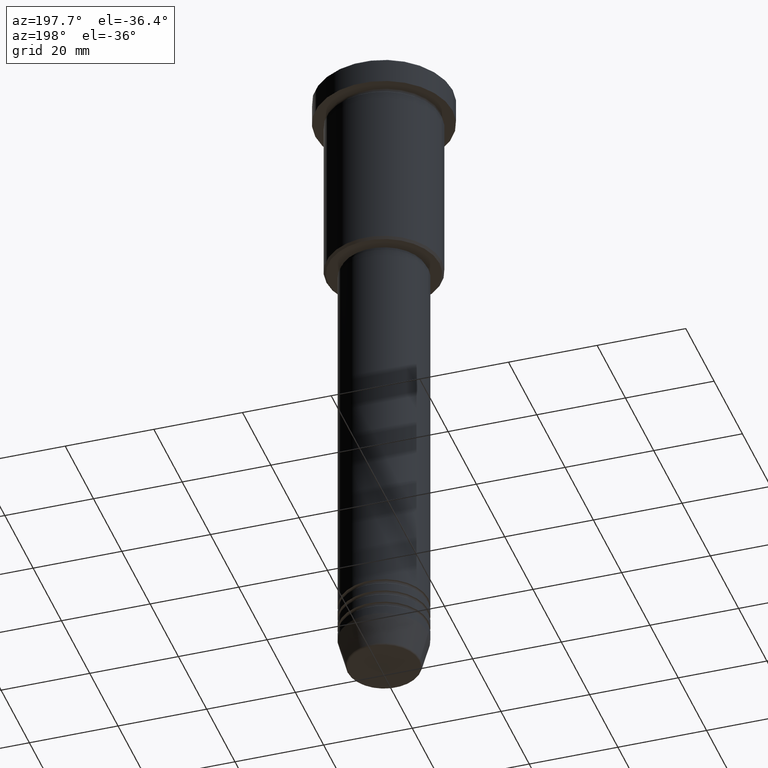
[diagram: clean part render]
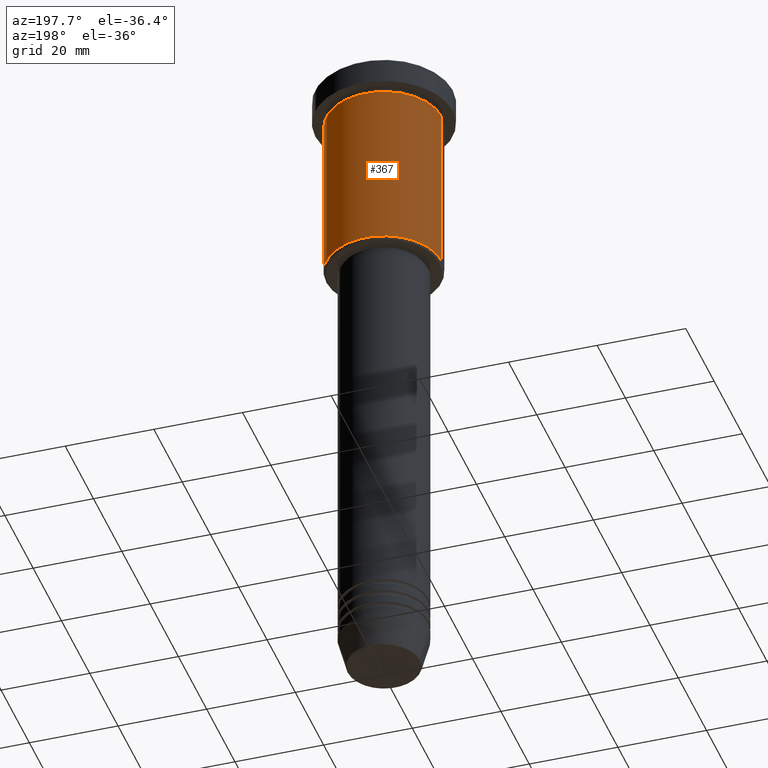
[diagram: same view with one face highlighted and labeled with its STEP entity id]
A machine part, auxiliary view. The second image highlights one B-rep face of the part: STEP entity #367.
In plain terms, the highlighted cylindrical surface (partial cylindrical patch) has radius 13 mm, axis along (-0, -0, 1).
Its self-contained STEP definition (entity closure, byte-faithful):
#68 = FACE_OUTER_BOUND ( 'NONE', #897, .T. ) ;
#77 = AXIS2_PLACEMENT_3D ( 'NONE', #512, #400, #955 ) ;
#80 = VERTEX_POINT ( 'NONE', #830 ) ;
#129 = CIRCLE ( 'NONE', #77, 13.00000000000000000 ) ;
#176 = CARTESIAN_POINT ( 'NONE',  ( 13.00000000000000000, 0.000000000000000000, -6.999999999999995559 ) ) ;
#222 = DIRECTION ( 'NONE',  ( -0.000000000000000000, -0.000000000000000000, 1.000000000000000000 ) ) ;
#252 = CARTESIAN_POINT ( 'NONE',  ( 13.00000000000000000, 0.000000000000000000, -45.50000000000001421 ) ) ;
#255 = DIRECTION ( 'NONE',  ( -0.000000000000000000, -0.000000000000000000, 1.000000000000000000 ) ) ;
#262 = LINE ( 'NONE', #816, #696 ) ;
#302 = AXIS2_PLACEMENT_3D ( 'NONE', #348, #702, #1072 ) ;
#341 = AXIS2_PLACEMENT_3D ( 'NONE', #781, #222, #591 ) ;
#348 = CARTESIAN_POINT ( 'NONE',  ( 0.000000000000000000, 0.000000000000000000, -6.999999999999995559 ) ) ;
#367 = ADVANCED_FACE ( 'NONE', ( #68 ), #1156, .T. ) ;
#400 = DIRECTION ( 'NONE',  ( -0.000000000000000000, -0.000000000000000000, 1.000000000000000000 ) ) ;
#403 = EDGE_CURVE ( 'NONE', #674, #755, #1099, .T. ) ;
#405 = ORIENTED_EDGE ( 'NONE', *, *, #416, .T. ) ;
#416 = EDGE_CURVE ( 'NONE', #80, #755, #262, .T. ) ;
#507 = VERTEX_POINT ( 'NONE', #252 ) ;
#512 = CARTESIAN_POINT ( 'NONE',  ( 0.000000000000000000, 0.000000000000000000, -45.50000000000001421 ) ) ;
#530 = LINE ( 'NONE', #629, #1136 ) ;
#591 = DIRECTION ( 'NONE',  ( 1.000000000000000000, 0.000000000000000000, 0.000000000000000000 ) ) ;
#604 = CARTESIAN_POINT ( 'NONE',  ( -13.00000000000000000, 1.592040838891559095E-15, -6.999999999999995559 ) ) ;
#629 = CARTESIAN_POINT ( 'NONE',  ( 13.00000000000000000, 0.000000000000000000, 0.000000000000000000 ) ) ;
#674 = VERTEX_POINT ( 'NONE', #176 ) ;
#689 = EDGE_CURVE ( 'NONE', #507, #80, #129, .T. ) ;
#696 = VECTOR ( 'NONE', #255, 1000.000000000000000 ) ;
#702 = DIRECTION ( 'NONE',  ( -0.000000000000000000, -0.000000000000000000, 1.000000000000000000 ) ) ;
#755 = VERTEX_POINT ( 'NONE', #604 ) ;
#758 = EDGE_CURVE ( 'NONE', #507, #674, #530, .T. ) ;
#781 = CARTESIAN_POINT ( 'NONE',  ( 0.000000000000000000, 0.000000000000000000, 0.000000000000000000 ) ) ;
#783 = ORIENTED_EDGE ( 'NONE', *, *, #758, .F. ) ;
#816 = CARTESIAN_POINT ( 'NONE',  ( -13.00000000000000000, 1.592040838891559095E-15, 0.000000000000000000 ) ) ;
#830 = CARTESIAN_POINT ( 'NONE',  ( -13.00000000000000000, 1.592040838891559095E-15, -45.50000000000001421 ) ) ;
#897 = EDGE_LOOP ( 'NONE', ( #1174, #405, #962, #783 ) ) ;
#953 = DIRECTION ( 'NONE',  ( -0.000000000000000000, -0.000000000000000000, 1.000000000000000000 ) ) ;
#955 = DIRECTION ( 'NONE',  ( -1.000000000000000000, 0.000000000000000000, 0.000000000000000000 ) ) ;
#962 = ORIENTED_EDGE ( 'NONE', *, *, #403, .F. ) ;
#1072 = DIRECTION ( 'NONE',  ( 1.000000000000000000, 0.000000000000000000, 0.000000000000000000 ) ) ;
#1099 = CIRCLE ( 'NONE', #302, 13.00000000000000000 ) ;
#1136 = VECTOR ( 'NONE', #953, 1000.000000000000000 ) ;
#1156 = CYLINDRICAL_SURFACE ( 'NONE', #341, 13.00000000000000000 ) ;
#1174 = ORIENTED_EDGE ( 'NONE', *, *, #689, .T. ) ;